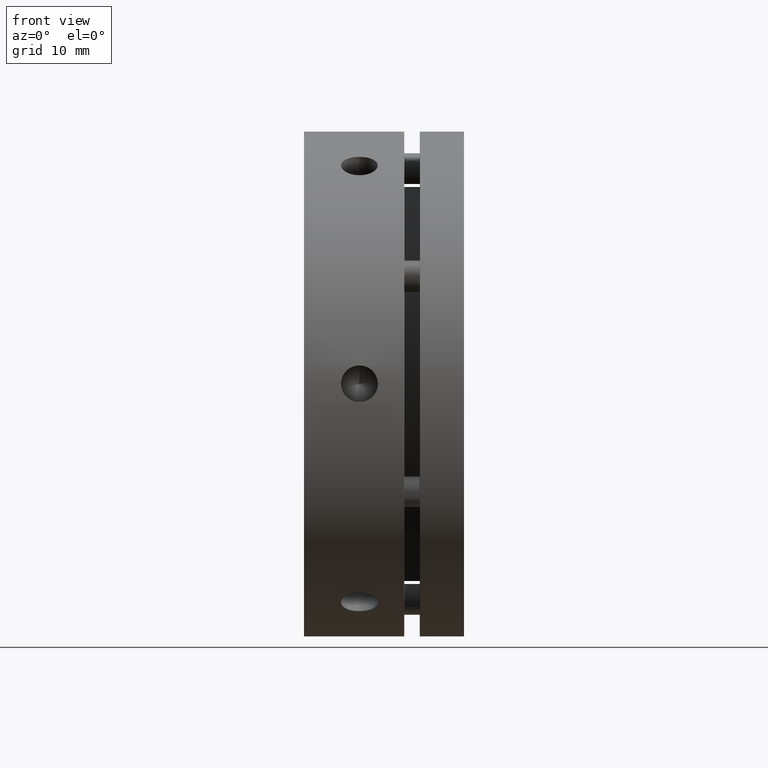
[diagram: clean part render]
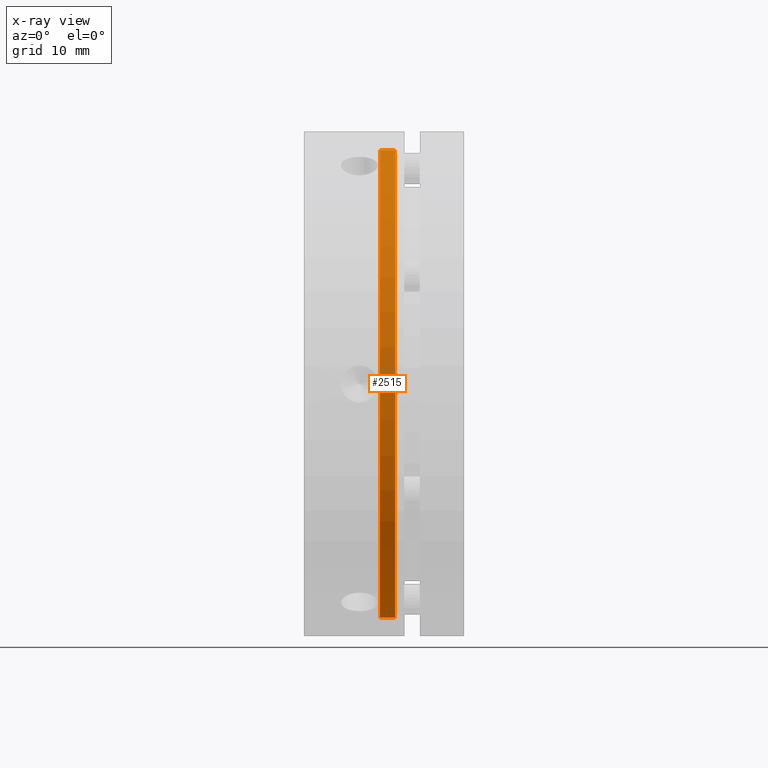
[diagram: x-ray — body ghosted, one internal face saturated and labeled with its STEP entity id]
A machine part, front view, then the same camera in x-ray: the body is ghosted and one INTERNAL B-rep face — a face not visible from any outside direction — is saturated and labeled: STEP entity #2515.
In plain terms, the highlighted cylindrical surface (partial cylindrical patch) has radius 38 mm, axis along (-1, 0, 0).
Its self-contained STEP definition (entity closure, byte-faithful):
#684 = ORIENTED_EDGE ( 'NONE', *, *, #4495, .T. ) ;
#709 = ORIENTED_EDGE ( 'NONE', *, *, #4493, .F. ) ;
#750 = ORIENTED_EDGE ( 'NONE', *, *, #4494, .T. ) ;
#931 = EDGE_LOOP ( 'NONE', ( #938, #684, #750, #709 ) ) ;
#938 = ORIENTED_EDGE ( 'NONE', *, *, #4496, .T. ) ;
#1096 = AXIS2_PLACEMENT_3D ( 'NONE', #2254, #2255, #2256 ) ;
#1097 = AXIS2_PLACEMENT_3D ( 'NONE', #2257, #2258, #2259 ) ;
#1392 = DIRECTION ( 'NONE',  ( 0.0000000000000000000, 0.0000000000000000000, 1.000000000000000000 ) ) ;
#1394 = DIRECTION ( 'NONE',  ( -1.000000000000000000, 0.0000000000000000000, 0.0000000000000000000 ) ) ;
#1396 = CARTESIAN_POINT ( 'NONE',  ( 13.55000000000000400, 0.0000000000000000000, 0.0000000000000000000 ) ) ;
#2085 = CARTESIAN_POINT ( 'NONE',  ( 14.80000000000000100, 0.0000000000000000000, 38.00000000000000700 ) ) ;
#2086 = CARTESIAN_POINT ( 'NONE',  ( 14.80000000000000100, 4.653657836759942700E-015, -38.00000000000000700 ) ) ;
#2091 = CARTESIAN_POINT ( 'NONE',  ( 12.30000000000000800, 4.653657836759942700E-015, -38.00000000000000700 ) ) ;
#2092 = CARTESIAN_POINT ( 'NONE',  ( 12.30000000000000800, 0.0000000000000000000, 38.00000000000000700 ) ) ;
#2248 = CARTESIAN_POINT ( 'NONE',  ( 13.55000000000000400, 0.0000000000000000000, 38.00000000000000700 ) ) ;
#2249 = DIRECTION ( 'NONE',  ( -1.000000000000000000, 0.0000000000000000000, 0.0000000000000000000 ) ) ;
#2250 = DIRECTION ( 'NONE',  ( -1.000000000000000000, 0.0000000000000000000, 0.0000000000000000000 ) ) ;
#2253 = CARTESIAN_POINT ( 'NONE',  ( 13.55000000000000400, 4.653657836759942700E-015, -38.00000000000000700 ) ) ;
#2254 = CARTESIAN_POINT ( 'NONE',  ( 12.30000000000000800, 0.0000000000000000000, 0.0000000000000000000 ) ) ;
#2255 = DIRECTION ( 'NONE',  ( -1.000000000000000000, 0.0000000000000000000, 0.0000000000000000000 ) ) ;
#2256 = DIRECTION ( 'NONE',  ( 0.0000000000000000000, 0.0000000000000000000, 1.000000000000000000 ) ) ;
#2257 = CARTESIAN_POINT ( 'NONE',  ( 14.80000000000000100, 0.0000000000000000000, 0.0000000000000000000 ) ) ;
#2258 = DIRECTION ( 'NONE',  ( 1.000000000000000000, -0.0000000000000000000, -0.0000000000000000000 ) ) ;
#2259 = DIRECTION ( 'NONE',  ( 0.0000000000000000000, 0.0000000000000000000, 1.000000000000000000 ) ) ;
#2515 = ADVANCED_FACE ( 'NONE', ( #2880 ), #2889, .F. ) ;
#2880 = FACE_OUTER_BOUND ( 'NONE', #931, .T. ) ;
#2889 = CYLINDRICAL_SURFACE ( 'NONE', #4621, 38.00000000000000700 ) ;
#3145 = VERTEX_POINT ( 'NONE', #2085 ) ;
#3146 = VERTEX_POINT ( 'NONE', #2086 ) ;
#3151 = VERTEX_POINT ( 'NONE', #2091 ) ;
#3152 = VERTEX_POINT ( 'NONE', #2092 ) ;
#3947 = CIRCLE ( 'NONE', #1096, 38.00000000000000700 ) ;
#3948 = LINE ( 'NONE', #2253, #3953 ) ;
#3949 = LINE ( 'NONE', #2248, #3950 ) ;
#3950 = VECTOR ( 'NONE', #2250, 1000.000000000000000 ) ;
#3952 = CIRCLE ( 'NONE', #1097, 38.00000000000000700 ) ;
#3953 = VECTOR ( 'NONE', #2249, 1000.000000000000000 ) ;
#4493 = EDGE_CURVE ( 'NONE', #3145, #3152, #3949, .T. ) ;
#4494 = EDGE_CURVE ( 'NONE', #3151, #3152, #3947, .T. ) ;
#4495 = EDGE_CURVE ( 'NONE', #3146, #3151, #3948, .T. ) ;
#4496 = EDGE_CURVE ( 'NONE', #3145, #3146, #3952, .T. ) ;
#4621 = AXIS2_PLACEMENT_3D ( 'NONE', #1396, #1394, #1392 ) ;